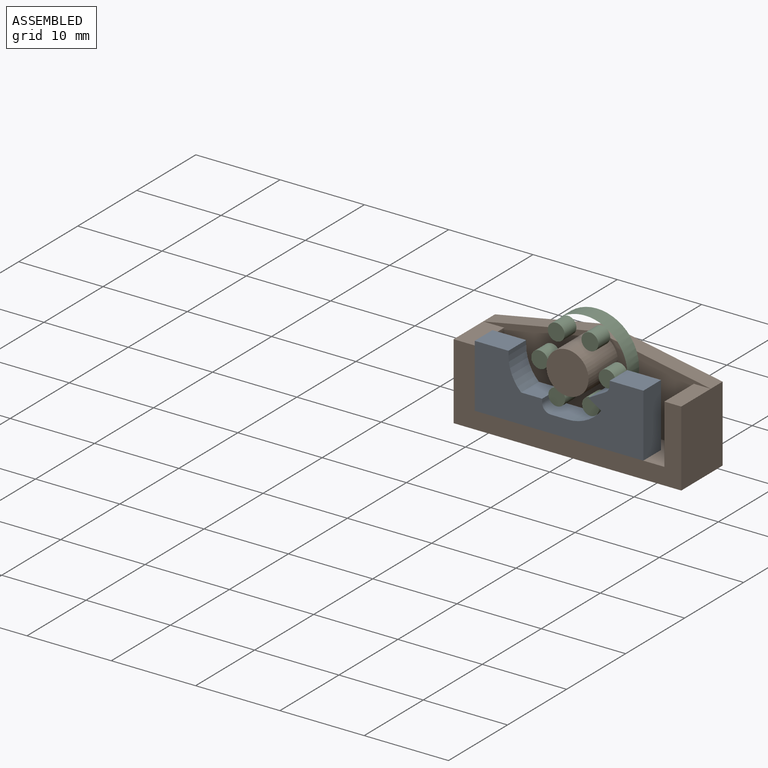
[diagram: assembled view]
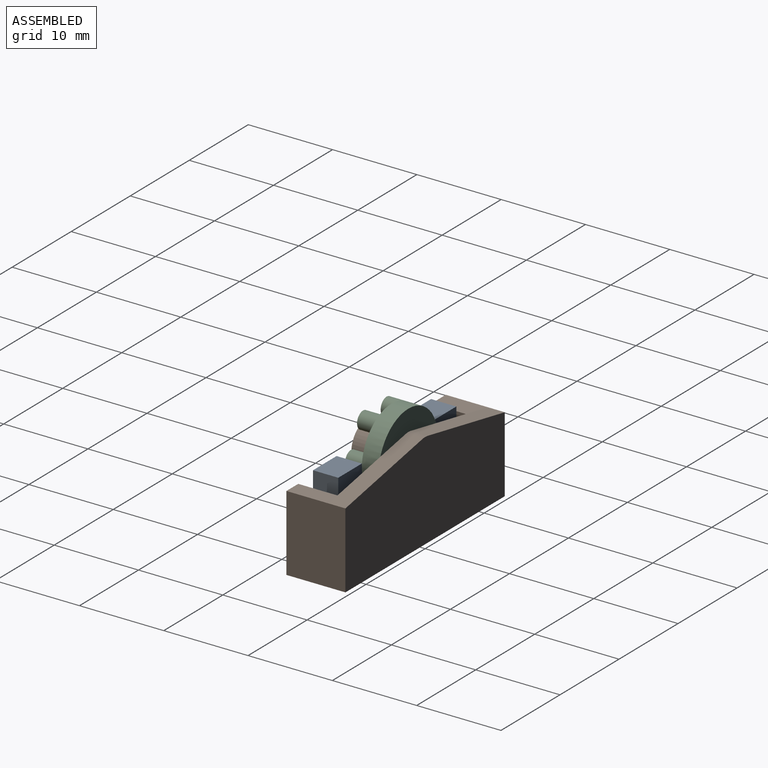
[diagram: assembled view, second angle]
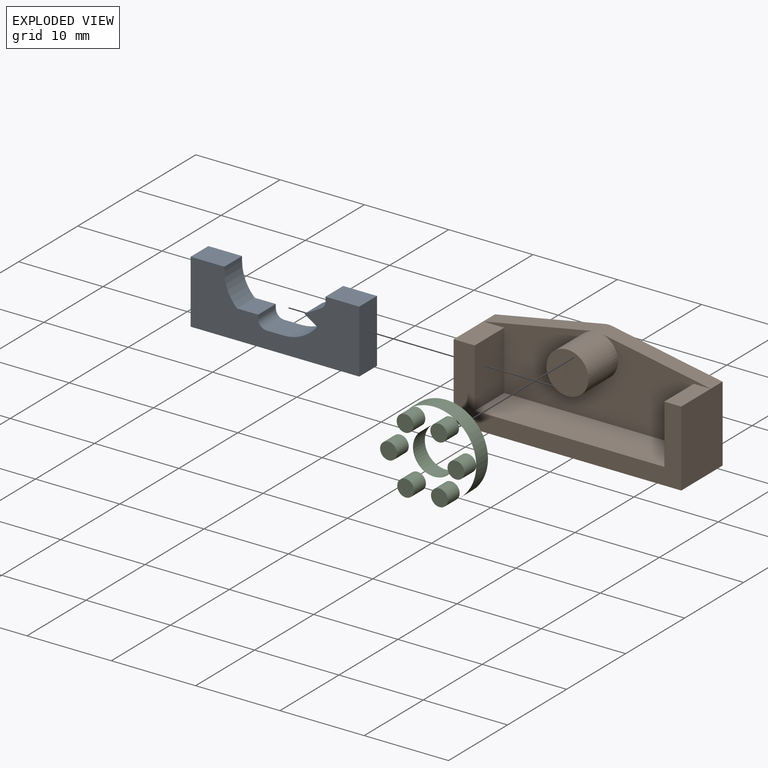
[diagram: exploded view]
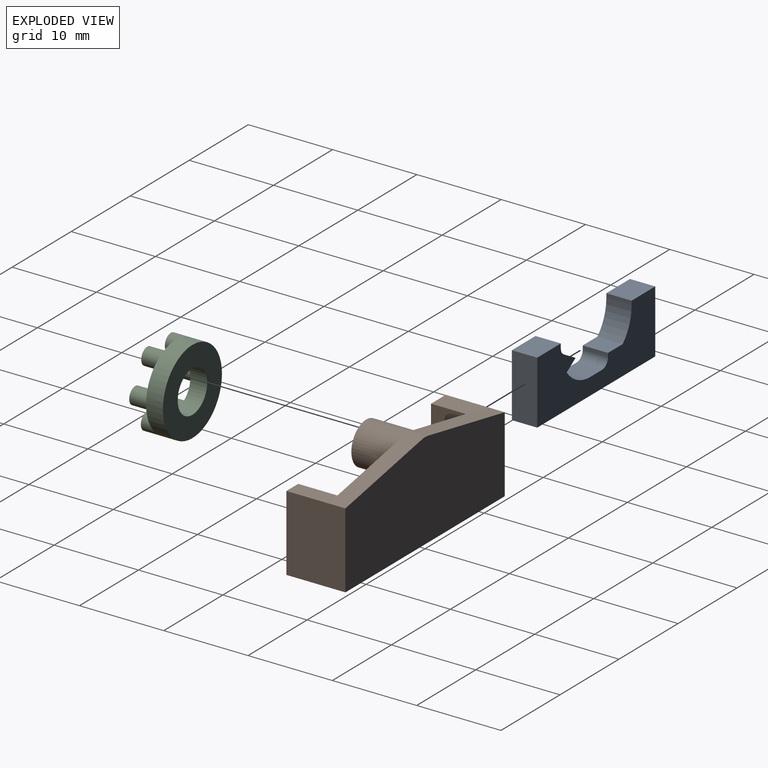
[diagram: exploded view, second angle]
ASSEMBLY  parts=3 mates=2
PART A: 19 faces, bbox 20x3x7.5 mm
  f0: plane 7.5x3mm, normal (1,0,0), area 22.5mm2, adj f1,f16,f17,f18
  f1: plane 4x3mm, normal (0,0,1), area 12mm2, adj f0,f2,f17,f18
  f2: plane 3x0.5mm, normal (-1,0,0), area 1.5mm2, adj f1,f3,f17,f18
  f3: cylinder r=1mm len=3mm, axis (0,1,0), area 3.3mm2, adj f2,f4,f17,f18
  f4: plane 3x0mm, normal (-0.76,0,-0.65), area 0mm2, adj f3,f5,f17,f18
  f5: plane 3x1.94mm, normal (-0.49,0,0.87), area 6.7mm2, adj f4,f6,f17,f18
  f6: plane 3x1.5mm, normal (-0.55,0,-0.83), area 5.4mm2, adj f5,f7,f17,f18
  f7: cylinder r=5mm len=4mm, axis (0,1,0), area 13.9mm2, adj f6,f8,f17,f18
  f8: plane 3x2mm, normal (0,0,1), area 6mm2, adj f7,f9,f17,f18
  f9: cylinder r=1mm len=3mm, axis (0,1,0), area 4.7mm2, adj f8,f10,f17,f18
  f10: plane 3x0.43mm, normal (1,0,0), area 1.3mm2, adj f9,f11,f17,f18
  f11: plane 3x2.5mm, normal (0,0,1), area 7.5mm2, adj f10,f12,f17,f18
  f12: cylinder r=5mm len=3.57mm, axis (0,1,0), area 11.9mm2, adj f11,f13,f17,f18
  f13: plane 3x0.5mm, normal (1,0,0), area 1.5mm2, adj f12,f14,f17,f18
  f14: plane 4x3mm, normal (0,0,1), area 12mm2, adj f13,f15,f17,f18
  f15: plane 7.5x3mm, normal (-1,0,0), area 22.5mm2, adj f14,f16,f17,f18
  f16: plane 20x3mm, normal (0,0,-1), area 60mm2, adj f0,f15,f17,f18
  f17: plane 20x7.5mm, normal (0,-1,0), area 99.6mm2, adj f0,f1,f2,f3,f4,f5,f6,f7
  f18: plane 20x7.5mm, normal (0,1,0), area 99.6mm2, adj f0,f1,f2,f3,f4,f5,f6,f7
PART B: 15 faces, bbox 27x7x11.5 mm
  f0: plane 27x9.46mm, normal (0,-1,0), area 172.2mm2, adj f1,f5,f6,f8,f9,f10,f11,f12
  f1: plane 13.04x2.46mm, normal (-0.19,0,0.98), area 26.5mm2, adj f0,f2,f6,f7
  f2: plane 9x7mm, normal (-1,0,0), area 63mm2, adj f1,f3,f7,f9,f13
  f3: plane 27x7mm, normal (0,0,-1), area 189mm2, adj f2,f4,f7,f13
  f4: plane 9x7mm, normal (1,0,0), area 63mm2, adj f3,f5,f7,f10,f13
  f5: plane 13.04x2.46mm, normal (0.19,0,0.98), area 26.5mm2, adj f0,f4,f6,f7
  f6: cylinder r=2.5mm len=7mm, axis (0,1,0), area 80.4mm2, adj f0,f1,f5,f7,f14
  f7: plane 27x11.5mm, normal (0,1,0), area 277.3mm2, adj f1,f2,f3,f4,f5,f6
  f8: plane 7x5mm, normal (1,0,0), area 35mm2, adj f0,f9,f12,f13
  f9: plane 5x2.5mm, normal (0,0,1), area 12.5mm2, adj f0,f2,f8,f13
  f10: plane 5x2mm, normal (0,0,1), area 10mm2, adj f0,f4,f11,f13
  f11: plane 7x5mm, normal (-1,0,0), area 35mm2, adj f0,f10,f12,f13
  f12: plane 22.5x5mm, normal (0,0,1), area 112.5mm2, adj f0,f8,f11,f13
  f13: plane 27x9mm, normal (0,-1,0), area 85.5mm2, adj f2,f3,f4,f8,f9,f10,f11,f12
  f14: plane 5x5mm, normal (0,-1,0), area 19.6mm2, adj f6
PART C: 16 faces, bbox 10x4x10 mm
  f0: cylinder r=2.5mm len=5mm, axis (0,1,0), area 31.4mm2, adj f2,f3
  f1: cylinder r=5mm len=10mm, axis (0,1,0), area 62.8mm2, adj f2,f3
  f2: plane 10x10mm, normal (0,-1,0), area 40.1mm2, adj f0,f1,f4,f6,f8,f10,f12,f14
  f3: plane 10x10mm, normal (0,1,0), area 58.9mm2, adj f0,f1
  f4: cylinder r=1mm len=2mm, axis (0,1,0), area 12.6mm2, adj f2,f5
  f5: plane 2x2mm, normal (0,-1,0), area 3.1mm2, adj f4
  f6: cylinder r=1mm len=2mm, axis (0,1,0), area 12.6mm2, adj f2,f7
  f7: plane 2x2mm, normal (0,-1,0), area 3.1mm2, adj f6
  f8: cylinder r=1mm len=2mm, axis (0,1,0), area 12.6mm2, adj f2,f9
  f9: plane 2x2mm, normal (0,-1,0), area 3.1mm2, adj f8
  f10: cylinder r=1mm len=2mm, axis (0,1,0), area 12.6mm2, adj f2,f11
  f11: plane 2x2mm, normal (0,-1,0), area 3.1mm2, adj f10
  f12: cylinder r=1mm len=2mm, axis (0,1,0), area 12.6mm2, adj f2,f13
  f13: plane 2x2mm, normal (0,-1,0), area 3.1mm2, adj f12
  f14: cylinder r=1mm len=2mm, axis (0,1,0), area 12.6mm2, adj f2,f15
  f15: plane 2x2mm, normal (0,-1,0), area 3.1mm2, adj f14
PLACE A t=(0,-4,7)mm
PLACE B at identity fixed
PLACE C rot(axis=(0,1,0),179.4deg) t=(0,-2,7)mm
MATE revolute C.f1 <-> B.f6  axis (0,1,0) through (0,-2,7)mm
MATE slider A.f15 <-> B.f8  axis (-1,0,0) through (-11,-7,0)mm
